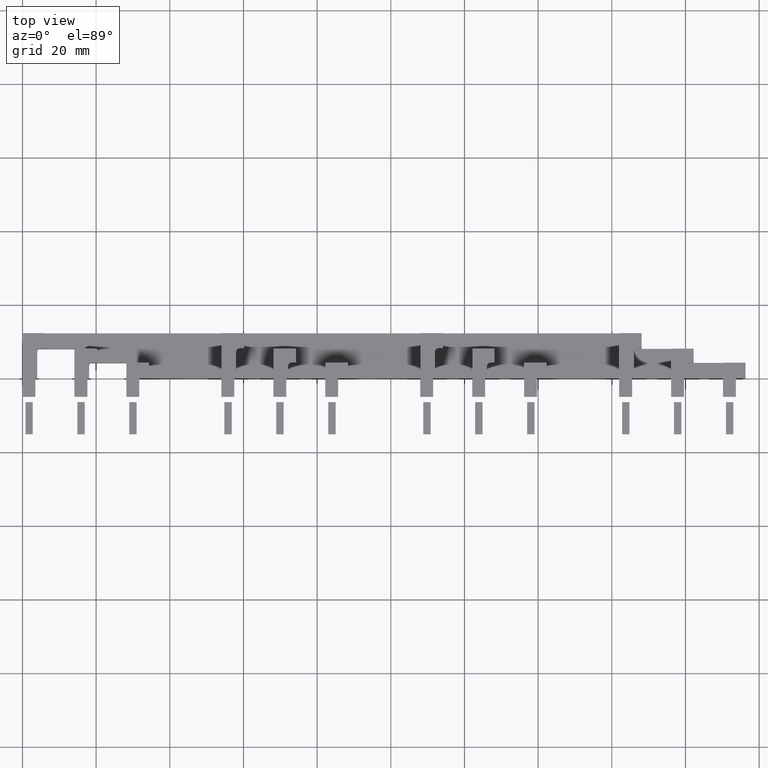
[diagram: clean part render]
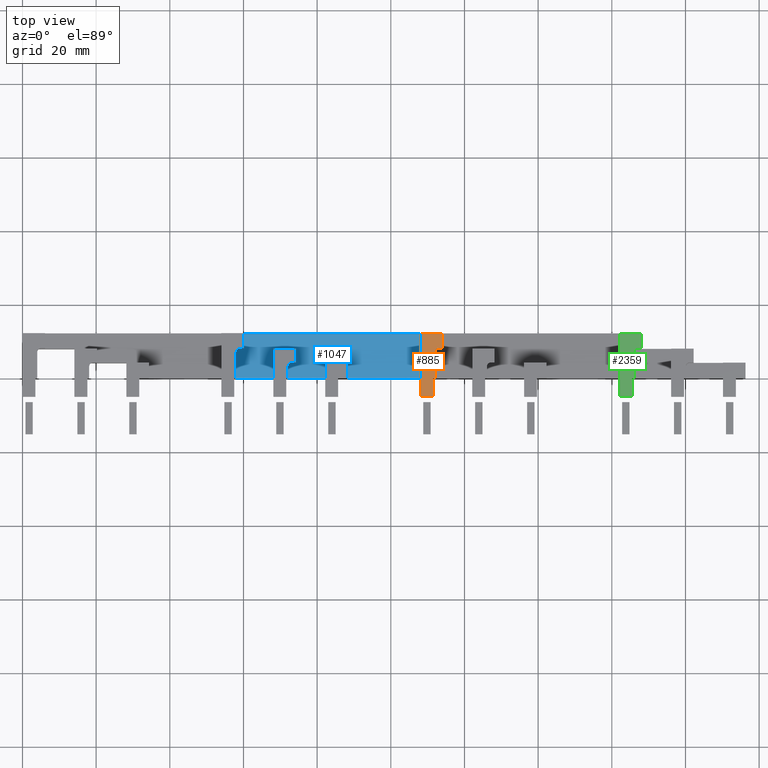
[diagram: same view with three faces highlighted in distinct colors, each labeled with its STEP entity id]
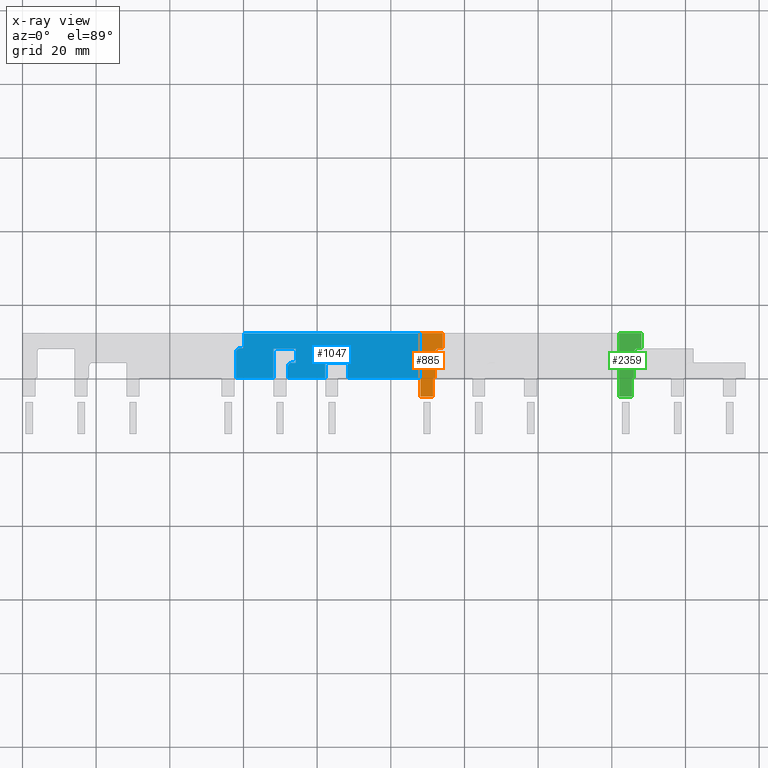
[diagram: x-ray of the same camera — body ghosted, the three highlighted faces saturated]
A machine part, top view with three faces highlighted in distinct colors.
The next image is the same camera in x-ray (body ghosted, the three faces saturated) — at least one of them is partly hidden behind the body in this view.
Their STEP definitions:

[orange] entity #885 — the highlighted planar face has unit normal (0, 0, 1).
#619=CARTESIAN_POINT('',(111.49999999999991,-2.842171E-014,100.09999999999997));
#620=VERTEX_POINT('',#619);
#621=CARTESIAN_POINT('',(111.50000000000026,-4.999999999999745,100.09999999999997));
#622=VERTEX_POINT('',#621);
#623=CARTESIAN_POINT('',(111.49999999999991,-2.842171E-014,100.09999999999997));
#624=DIRECTION('',(0.0,-1.0,0.0));
#625=VECTOR('',#624,4.999999999999717);
#626=LINE('',#623,#625);
#627=EDGE_CURVE('',#620,#622,#626,.T.);
#659=CARTESIAN_POINT('',(107.9999999999998,-4.999999999999532,100.09999999999997));
#660=VERTEX_POINT('',#659);
#661=CARTESIAN_POINT('',(111.50000000000026,-4.999999999999758,100.09999999999997));
#662=DIRECTION('',(-1.0,0.0,0.0));
#663=VECTOR('',#662,3.500000000000455);
#664=LINE('',#661,#663);
#665=EDGE_CURVE('',#622,#660,#664,.T.);
#690=CARTESIAN_POINT('',(108.0,12.200000000000061,100.09999999999997));
#691=VERTEX_POINT('',#690);
#692=CARTESIAN_POINT('',(107.99999999999977,-4.999999999999533,100.09999999999997));
#693=DIRECTION('',(0.0,1.0,0.0));
#694=VECTOR('',#693,17.199999999999594);
#695=LINE('',#692,#694);
#696=EDGE_CURVE('',#660,#691,#695,.T.);
#729=CARTESIAN_POINT('',(114.09999999999968,12.200000000000076,100.09999999999997));
#730=VERTEX_POINT('',#729);
#731=CARTESIAN_POINT('',(114.0999999999997,8.099999999991754,100.09999999999997));
#732=VERTEX_POINT('',#731);
#733=CARTESIAN_POINT('',(114.09999999999968,12.200000000000063,100.09999999999997));
#734=DIRECTION('',(0.0,-1.0,0.0));
#735=VECTOR('',#734,4.100000000008309);
#736=LINE('',#733,#735);
#737=EDGE_CURVE('',#730,#732,#736,.T.);
#769=CARTESIAN_POINT('',(112.9999999999999,8.099999999991754,100.09999999999997));
#770=VERTEX_POINT('',#769);
#771=CARTESIAN_POINT('',(114.0999999999997,8.099999999991754,100.09999999999997));
#772=DIRECTION('',(-1.0,0.0,0.0));
#773=VECTOR('',#772,1.099999999999795);
#774=LINE('',#771,#773);
#775=EDGE_CURVE('',#732,#770,#774,.T.);
#800=CARTESIAN_POINT('',(111.9999999999999,7.099999999991782,100.09999999999997));
#801=VERTEX_POINT('',#800);
#802=CARTESIAN_POINT('',(112.9999999999999,7.099999999991753,100.09999999999997));
#803=DIRECTION('',(6.536127E-017,-6.536127E-017,1.0));
#804=DIRECTION('',(-0.707106781186538,0.707106781186558,9.243480E-017));
#805=AXIS2_PLACEMENT_3D('',#802,#803,#804);
#806=CIRCLE('',#805,1.0);
#807=EDGE_CURVE('',#770,#801,#806,.T.);
#833=CARTESIAN_POINT('',(111.9999999999999,1.989520E-013,100.09999999999997));
#834=VERTEX_POINT('',#833);
#835=CARTESIAN_POINT('',(111.9999999999999,7.099999999991782,100.09999999999997));
#836=DIRECTION('',(0.0,-1.0,0.0));
#837=VECTOR('',#836,7.099999999991583);
#838=LINE('',#835,#837);
#839=EDGE_CURVE('',#801,#834,#838,.T.);
#859=CARTESIAN_POINT('',(110.39318724594189,4.206149559895096,100.09999999999997));
#860=DIRECTION('',(0.0,0.0,1.0));
#861=DIRECTION('',(1.0,0.0,0.0));
#862=AXIS2_PLACEMENT_3D('',#859,#860,#861);
#863=PLANE('',#862);
#864=CARTESIAN_POINT('',(111.99999999999991,1.990365E-013,100.09999999999997));
#865=DIRECTION('',(-1.0,-4.549164E-013,0.0));
#866=VECTOR('',#865,0.5);
#867=LINE('',#864,#866);
#868=EDGE_CURVE('',#834,#620,#867,.T.);
#869=ORIENTED_EDGE('',*,*,#868,.F.);
#870=ORIENTED_EDGE('',*,*,#839,.F.);
#871=ORIENTED_EDGE('',*,*,#807,.F.);
#872=ORIENTED_EDGE('',*,*,#775,.F.);
#873=ORIENTED_EDGE('',*,*,#737,.F.);
#874=CARTESIAN_POINT('',(108.0,12.200000000000088,100.09999999999997));
#875=DIRECTION('',(1.0,0.0,0.0));
#876=VECTOR('',#875,6.099999999999682);
#877=LINE('',#874,#876);
#878=EDGE_CURVE('',#691,#730,#877,.T.);
#879=ORIENTED_EDGE('',*,*,#878,.F.);
#880=ORIENTED_EDGE('',*,*,#696,.F.);
#881=ORIENTED_EDGE('',*,*,#665,.F.);
#882=ORIENTED_EDGE('',*,*,#627,.F.);
#883=EDGE_LOOP('',(#869,#870,#871,#872,#873,#879,#880,#881,#882));
#884=FACE_OUTER_BOUND('',#883,.T.);
#885=ADVANCED_FACE('',(#884),#863,.T.);

[blue] entity #1047 — the highlighted planar face has unit normal (0, 0, 1).
#698=CARTESIAN_POINT('',(108.0,12.200000000000061,95.999999999999957));
#699=VERTEX_POINT('',#698);
#706=CARTESIAN_POINT('',(107.99999999999984,1.421085E-014,95.999999999999957));
#707=VERTEX_POINT('',#706);
#708=CARTESIAN_POINT('',(107.99999999999987,0.0,95.999999999999957));
#709=DIRECTION('',(0.0,1.0,0.0));
#710=VECTOR('',#709,12.200000000000047);
#711=LINE('',#708,#710);
#712=EDGE_CURVE('',#707,#699,#711,.T.);
#903=CARTESIAN_POINT('',(7.049999999999828,10.099999999996159,95.999999999999972));
#904=DIRECTION('',(0.0,0.0,1.0));
#905=DIRECTION('',(1.0,0.0,0.0));
#906=AXIS2_PLACEMENT_3D('',#903,#904,#905);
#907=PLANE('',#906);
#908=ORIENTED_EDGE('',*,*,#712,.T.);
#909=CARTESIAN_POINT('',(60.099999999999689,12.200000000000033,95.999999999999972));
#910=VERTEX_POINT('',#909);
#911=CARTESIAN_POINT('',(108.00000000000001,12.200000000000067,95.999999999999957));
#912=DIRECTION('',(-1.0,0.0,0.0));
#913=VECTOR('',#912,47.900000000000333);
#914=LINE('',#911,#913);
#915=EDGE_CURVE('',#699,#910,#914,.T.);
#916=ORIENTED_EDGE('',*,*,#915,.T.);
#917=CARTESIAN_POINT('',(60.099999999999689,8.09999999999174,95.999999999999972));
#918=VERTEX_POINT('',#917);
#919=CARTESIAN_POINT('',(60.099999999999682,12.200000000000019,95.999999999999972));
#920=DIRECTION('',(0.0,-1.0,0.0));
#921=VECTOR('',#920,4.100000000008309);
#922=LINE('',#919,#921);
#923=EDGE_CURVE('',#910,#918,#922,.T.);
#924=ORIENTED_EDGE('',*,*,#923,.T.);
#925=CARTESIAN_POINT('',(58.999999999999886,8.09999999999174,95.999999999999972));
#926=VERTEX_POINT('',#925);
#927=CARTESIAN_POINT('',(60.099999999999682,8.099999999991773,95.999999999999972));
#928=DIRECTION('',(-1.0,0.0,0.0));
#929=VECTOR('',#928,1.099999999999795);
#930=LINE('',#927,#929);
#931=EDGE_CURVE('',#918,#926,#930,.T.);
#932=ORIENTED_EDGE('',*,*,#931,.T.);
#933=CARTESIAN_POINT('',(57.999999999999893,7.09999999999174,95.999999999999972));
#934=VERTEX_POINT('',#933);
#935=CARTESIAN_POINT('',(58.999999999999886,7.09999999999174,95.999999999999972));
#936=DIRECTION('',(6.536127E-017,-6.536127E-017,1.0));
#937=DIRECTION('',(-0.707106781186538,0.707106781186558,9.243480E-017));
#938=AXIS2_PLACEMENT_3D('',#935,#936,#937);
#939=CIRCLE('',#938,1.0);
#940=EDGE_CURVE('',#926,#934,#939,.T.);
#941=ORIENTED_EDGE('',*,*,#940,.T.);
#942=CARTESIAN_POINT('',(57.999999999999893,1.847411E-013,95.999999999999972));
#943=VERTEX_POINT('',#942);
#944=CARTESIAN_POINT('',(57.999999999999893,7.099999999991754,95.999999999999972));
#945=DIRECTION('',(0.0,-1.0,0.0));
#946=VECTOR('',#945,7.099999999991583);
#947=LINE('',#944,#946);
#948=EDGE_CURVE('',#934,#943,#947,.T.);
#949=ORIENTED_EDGE('',*,*,#948,.T.);
#950=CARTESIAN_POINT('',(68.099999999999696,1.421085E-014,95.999999999999972));
#951=VERTEX_POINT('',#950);
#952=CARTESIAN_POINT('',(57.999999999999886,-2.219125E-014,95.999999999999972));
#953=DIRECTION('',(1.0,0.0,0.0));
#954=VECTOR('',#953,10.099999999999795);
#955=LINE('',#952,#954);
#956=EDGE_CURVE('',#943,#951,#955,.T.);
#957=ORIENTED_EDGE('',*,*,#956,.T.);
#958=CARTESIAN_POINT('',(68.099999999999696,7.999999999992285,95.999999999999972));
#959=VERTEX_POINT('',#958);
#960=CARTESIAN_POINT('',(68.099999999999696,1.421085E-014,95.999999999999972));
#961=DIRECTION('',(0.0,1.0,0.0));
#962=VECTOR('',#961,7.999999999992271);
#963=LINE('',#960,#962);
#964=EDGE_CURVE('',#951,#959,#963,.T.);
#965=ORIENTED_EDGE('',*,*,#964,.T.);
#966=CARTESIAN_POINT('',(74.199999999999662,7.999999999992512,95.999999999999972));
#967=VERTEX_POINT('',#966);
#968=CARTESIAN_POINT('',(68.099999999999682,7.999999999992284,95.999999999999972));
#969=DIRECTION('',(1.0,0.0,0.0));
#970=VECTOR('',#969,6.099999999999966);
#971=LINE('',#968,#970);
#972=EDGE_CURVE('',#959,#967,#971,.T.);
#973=ORIENTED_EDGE('',*,*,#972,.T.);
#974=CARTESIAN_POINT('',(74.199999999999207,4.199999999992785,95.999999999999972));
#975=VERTEX_POINT('',#974);
#976=CARTESIAN_POINT('',(74.199999999999633,7.999999999992513,95.999999999999972));
#977=DIRECTION('',(-1.196704E-013,-1.0,0.0));
#978=VECTOR('',#977,3.799999999999757);
#979=LINE('',#976,#978);
#980=EDGE_CURVE('',#967,#975,#979,.T.);
#981=ORIENTED_EDGE('',*,*,#980,.T.);
#982=CARTESIAN_POINT('',(73.099999999999696,4.199999999992785,95.999999999999972));
#983=VERTEX_POINT('',#982);
#984=CARTESIAN_POINT('',(74.199999999999193,4.19999999999278,95.999999999999972));
#985=DIRECTION('',(-1.0,0.0,0.0));
#986=VECTOR('',#985,1.099999999999511);
#987=LINE('',#984,#986);
#988=EDGE_CURVE('',#975,#983,#987,.T.);
#989=ORIENTED_EDGE('',*,*,#988,.T.);
#990=CARTESIAN_POINT('',(72.099999999999696,3.199999999992784,95.999999999999972));
#991=VERTEX_POINT('',#990);
#992=CARTESIAN_POINT('',(73.099999999999639,3.199999999992842,95.999999999999972));
#993=DIRECTION('',(6.536127E-017,-6.536127E-017,1.0));
#994=DIRECTION('',(-0.707106781186548,0.707106781186547,9.243480E-017));
#995=AXIS2_PLACEMENT_3D('',#992,#993,#994);
#996=CIRCLE('',#995,0.999999999999943);
#997=EDGE_CURVE('',#983,#991,#996,.T.);
#998=ORIENTED_EDGE('',*,*,#997,.T.);
#999=CARTESIAN_POINT('',(72.099999999999696,-4.263256E-014,95.999999999999957));
#1000=VERTEX_POINT('',#999);
#1001=CARTESIAN_POINT('',(72.099999999999696,3.199999999992785,95.999999999999972));
#1002=DIRECTION('',(0.0,-1.0,0.0));
#1003=VECTOR('',#1002,3.199999999992827);
#1004=LINE('',#1001,#1003);
#1005=EDGE_CURVE('',#991,#1000,#1004,.T.);
#1006=ORIENTED_EDGE('',*,*,#1005,.T.);
#1007=CARTESIAN_POINT('',(82.199999999999591,1.421085E-014,95.999999999999957));
#1008=VERTEX_POINT('',#1007);
#1009=CARTESIAN_POINT('',(72.099999999999682,-1.980728E-014,95.999999999999957));
#1010=DIRECTION('',(1.0,0.0,0.0));
#1011=VECTOR('',#1010,10.099999999999909);
#1012=LINE('',#1009,#1011);
#1013=EDGE_CURVE('',#1000,#1008,#1012,.T.);
#1014=ORIENTED_EDGE('',*,*,#1013,.T.);
#1015=CARTESIAN_POINT('',(82.199999999999591,4.199999999992103,95.999999999999972));
#1016=VERTEX_POINT('',#1015);
#1017=CARTESIAN_POINT('',(82.199999999999591,-1.421085E-014,95.999999999999972));
#1018=DIRECTION('',(0.0,1.0,0.0));
#1019=VECTOR('',#1018,4.199999999992117);
#1020=LINE('',#1017,#1019);
#1021=EDGE_CURVE('',#1008,#1016,#1020,.T.);
#1022=ORIENTED_EDGE('',*,*,#1021,.T.);
#1023=CARTESIAN_POINT('',(88.299999999999628,4.199999999992103,95.999999999999972));
#1024=VERTEX_POINT('',#1023);
#1025=CARTESIAN_POINT('',(82.199999999999591,4.199999999992109,95.999999999999972));
#1026=DIRECTION('',(1.0,0.0,0.0));
#1027=VECTOR('',#1026,6.100000000000023);
#1028=LINE('',#1025,#1027);
#1029=EDGE_CURVE('',#1016,#1024,#1028,.T.);
#1030=ORIENTED_EDGE('',*,*,#1029,.T.);
#1031=CARTESIAN_POINT('',(88.299999999999628,-7.887024E-012,95.999999999999957));
#1032=VERTEX_POINT('',#1031);
#1033=CARTESIAN_POINT('',(88.299999999999628,4.199999999992116,95.999999999999957));
#1034=DIRECTION('',(0.0,-1.0,0.0));
#1035=VECTOR('',#1034,4.200000000000004);
#1036=LINE('',#1033,#1035);
#1037=EDGE_CURVE('',#1024,#1032,#1036,.T.);
#1038=ORIENTED_EDGE('',*,*,#1037,.T.);
#1039=CARTESIAN_POINT('',(88.299999999999613,-1.706824E-014,95.999999999999957));
#1040=DIRECTION('',(1.0,0.0,0.0));
#1041=VECTOR('',#1040,19.70000000000023);
#1042=LINE('',#1039,#1041);
#1043=EDGE_CURVE('',#1032,#707,#1042,.T.);
#1044=ORIENTED_EDGE('',*,*,#1043,.T.);
#1045=EDGE_LOOP('',(#908,#916,#924,#932,#941,#949,#957,#965,#973,#981,#989,#998,#1006,#1014,#1022,#1030,#1038,#1044));
#1046=FACE_OUTER_BOUND('',#1045,.T.);
#1047=ADVANCED_FACE('',(#1046),#907,.T.);

[green] entity #2359 — the highlighted planar face has unit normal (0, 0, 1).
#2141=CARTESIAN_POINT('',(165.49999999999994,-5.684342E-014,100.09999999999994));
#2142=VERTEX_POINT('',#2141);
#2143=CARTESIAN_POINT('',(165.50000000000026,-4.999999999999774,100.09999999999997));
#2144=VERTEX_POINT('',#2143);
#2145=CARTESIAN_POINT('',(165.49999999999991,-5.684342E-014,100.09999999999997));
#2146=DIRECTION('',(0.0,-1.0,0.0));
#2147=VECTOR('',#2146,4.999999999999717);
#2148=LINE('',#2145,#2147);
#2149=EDGE_CURVE('',#2142,#2144,#2148,.T.);
#2181=CARTESIAN_POINT('',(161.99999999999983,-4.999999999999518,100.09999999999997));
#2182=VERTEX_POINT('',#2181);
#2183=CARTESIAN_POINT('',(165.50000000000028,-4.999999999999744,100.09999999999997));
#2184=DIRECTION('',(-1.0,0.0,0.0));
#2185=VECTOR('',#2184,3.500000000000455);
#2186=LINE('',#2183,#2185);
#2187=EDGE_CURVE('',#2144,#2182,#2186,.T.);
#2212=CARTESIAN_POINT('',(162.00000000000003,12.200000000000076,100.09999999999997));
#2213=VERTEX_POINT('',#2212);
#2214=CARTESIAN_POINT('',(161.9999999999998,-4.999999999999519,100.09999999999997));
#2215=DIRECTION('',(0.0,1.0,0.0));
#2216=VECTOR('',#2215,17.199999999999594);
#2217=LINE('',#2214,#2216);
#2218=EDGE_CURVE('',#2182,#2213,#2217,.T.);
#2251=CARTESIAN_POINT('',(168.09999999999971,8.099999999991725,100.09999999999997));
#2252=VERTEX_POINT('',#2251);
#2253=CARTESIAN_POINT('',(166.99999999999991,8.099999999991725,100.09999999999997));
#2254=VERTEX_POINT('',#2253);
#2255=CARTESIAN_POINT('',(168.09999999999971,8.099999999991725,100.09999999999997));
#2256=DIRECTION('',(-1.0,0.0,0.0));
#2257=VECTOR('',#2256,1.099999999999795);
#2258=LINE('',#2255,#2257);
#2259=EDGE_CURVE('',#2252,#2254,#2258,.T.);
#2282=CARTESIAN_POINT('',(165.99999999999991,7.099999999991782,100.09999999999997));
#2283=VERTEX_POINT('',#2282);
#2284=CARTESIAN_POINT('',(166.99999999999991,7.099999999991725,100.09999999999997));
#2285=DIRECTION('',(6.536127E-017,-6.536127E-017,1.0));
#2286=DIRECTION('',(-0.707106781186538,0.707106781186558,9.243480E-017));
#2287=AXIS2_PLACEMENT_3D('',#2284,#2285,#2286);
#2288=CIRCLE('',#2287,1.0);
#2289=EDGE_CURVE('',#2254,#2283,#2288,.T.);
#2307=CARTESIAN_POINT('',(165.99999999999991,1.705303E-013,100.09999999999994));
#2308=VERTEX_POINT('',#2307);
#2309=CARTESIAN_POINT('',(165.99999999999991,7.099999999991754,100.09999999999994));
#2310=DIRECTION('',(0.0,-1.0,0.0));
#2311=VECTOR('',#2310,7.099999999991583);
#2312=LINE('',#2309,#2311);
#2313=EDGE_CURVE('',#2283,#2308,#2312,.T.);
#2326=CARTESIAN_POINT('',(164.3931872459419,4.206149559895096,100.09999999999994));
#2327=DIRECTION('',(0.0,0.0,1.0));
#2328=DIRECTION('',(1.0,0.0,0.0));
#2329=AXIS2_PLACEMENT_3D('',#2326,#2327,#2328);
#2330=PLANE('',#2329);
#2331=CARTESIAN_POINT('',(165.99999999999994,1.706148E-013,100.09999999999994));
#2332=DIRECTION('',(-1.0,-4.549164E-013,0.0));
#2333=VECTOR('',#2332,0.5);
#2334=LINE('',#2331,#2333);
#2335=EDGE_CURVE('',#2308,#2142,#2334,.T.);
#2336=ORIENTED_EDGE('',*,*,#2335,.F.);
#2337=ORIENTED_EDGE('',*,*,#2313,.F.);
#2338=ORIENTED_EDGE('',*,*,#2289,.F.);
#2339=ORIENTED_EDGE('',*,*,#2259,.F.);
#2340=CARTESIAN_POINT('',(168.09999999999971,12.200000000000049,100.09999999999997));
#2341=VERTEX_POINT('',#2340);
#2342=CARTESIAN_POINT('',(168.09999999999968,12.200000000000035,100.09999999999997));
#2343=DIRECTION('',(0.0,-1.0,0.0));
#2344=VECTOR('',#2343,4.100000000008309);
#2345=LINE('',#2342,#2344);
#2346=EDGE_CURVE('',#2341,#2252,#2345,.T.);
#2347=ORIENTED_EDGE('',*,*,#2346,.F.);
#2348=CARTESIAN_POINT('',(162.00000000000003,12.200000000000061,100.09999999999997));
#2349=DIRECTION('',(1.0,0.0,0.0));
#2350=VECTOR('',#2349,6.099999999999682);
#2351=LINE('',#2348,#2350);
#2352=EDGE_CURVE('',#2213,#2341,#2351,.T.);
#2353=ORIENTED_EDGE('',*,*,#2352,.F.);
#2354=ORIENTED_EDGE('',*,*,#2218,.F.);
#2355=ORIENTED_EDGE('',*,*,#2187,.F.);
#2356=ORIENTED_EDGE('',*,*,#2149,.F.);
#2357=EDGE_LOOP('',(#2336,#2337,#2338,#2339,#2347,#2353,#2354,#2355,#2356));
#2358=FACE_OUTER_BOUND('',#2357,.T.);
#2359=ADVANCED_FACE('',(#2358),#2330,.T.);